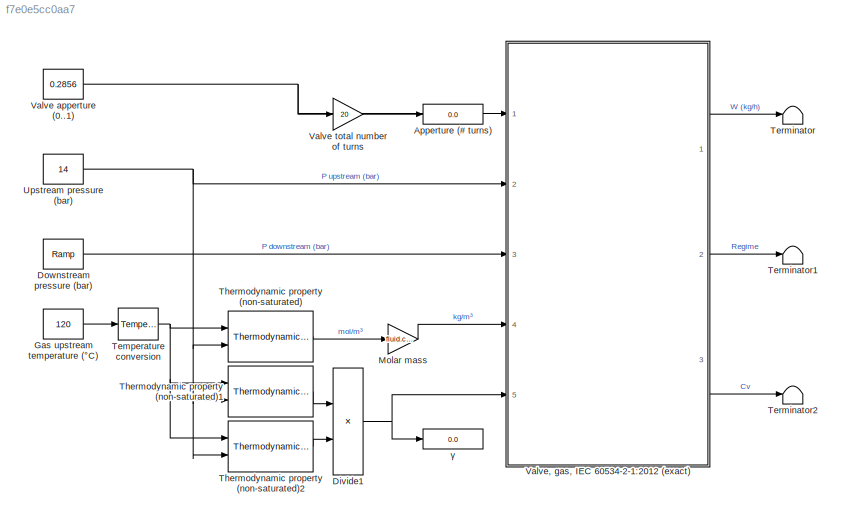
MODEL slx_f7e0e5cc0aa7
KIND model
CONFIG AbsTol = auto
CONFIG EnableMultiTasking = off
CONFIG FixedStep = auto
CONFIG MaxStep = auto
CONFIG MinStep = auto
CONFIG RelTol = 1e-3
CONFIG SampleTimeConstraint = Unconstrained
CONFIG Solver = VariableStepAuto
CONFIG SolverName = VariableStepAuto
CONFIG StartTime = 0.0
CONFIG StopTime = 5
BLOCK [Display] Apperture (# turns)
  Decimation = 1
  Ports = [1]
BLOCK [Product] Divide1
  InputSameDT = off
  Inputs = */
  OutDataTypeStr = Inherit: Inherit via internal rule
  Ports = [2, 1]
  RndMeth = Floor
  SaturateOnIntegerOverflow = off
BLOCK [Reference] Downstream pressure (bar)   REF=simulink/Sources/Ramp
  Ports = [0, 1]
  SourceBlock = simulink/Sources/Ramp
  SourceProductBaseCode = SL
  SourceProductName = Simulink
  SourceType = Ramp
BLOCK [Constant] Gas upstream temperature (°C)
  Value = 120
BLOCK [Gain] Molar mass
  Gain = fluid.constants.Molar_mass
  OutDataTypeStr = Inherit: Inherit via internal rule
  ParamDataTypeStr = Inherit: Inherit via internal rule
  SaturateOnIntegerOverflow = off
BLOCK [Reference] Temperature conversion  REF=thermochemical/Conversions/Temperature  (lib defined in slx_f9e0643dc704)
conversion
  Ports = [1, 1]
  SourceBlock = thermochemical/Conversions/Temperature\nconversion
  SourceProductName = @ Thermochemical
  SourceType = convert_temperature
BLOCK [Terminator] Terminator
BLOCK [Terminator] Terminator1
BLOCK [Terminator] Terminator2
BLOCK [Reference] Thermodynamic property (non-saturated)  REF=thermochemical/Thermodynamic fluid properties/Thermodynamic   (lib defined in slx_f9e0643dc704)
property (non-saturated)
  Ports = [2, 1]
  SourceBlock = thermochemical/Thermodynamic fluid properties/Thermodynamic \nproperty (non-saturated)
  SourceProductName = @ Thermochemical
  SourceType = thermodynamic_properties_nonsaturated
BLOCK [Reference] Thermodynamic property (non-saturated)1  REF=thermochemical/Thermodynamic fluid properties/Thermodynamic   (lib defined in slx_f9e0643dc704)
property (non-saturated)
  Ports = [2, 1]
  SourceBlock = thermochemical/Thermodynamic fluid properties/Thermodynamic \nproperty (non-saturated)
  SourceProductName = @ Thermochemical
  SourceType = thermodynamic_properties_nonsaturated
BLOCK [Reference] Thermodynamic property (non-saturated)2  REF=thermochemical/Thermodynamic fluid properties/Thermodynamic   (lib defined in slx_f9e0643dc704)
property (non-saturated)
  Ports = [2, 1]
  SourceBlock = thermochemical/Thermodynamic fluid properties/Thermodynamic \nproperty (non-saturated)
  SourceProductName = @ Thermochemical
  SourceType = thermodynamic_properties_nonsaturated
BLOCK [Constant] Upstream pressure (bar)
  Value = 14
BLOCK [Constant] Valve apperture (0..1)
  Value = 0.2856
BLOCK [Gain] Valve total number of turns
  Gain = 20
  OutDataTypeStr = Inherit: Inherit via internal rule
  ParamDataTypeStr = Inherit: Inherit via internal rule
  SaturateOnIntegerOverflow = off
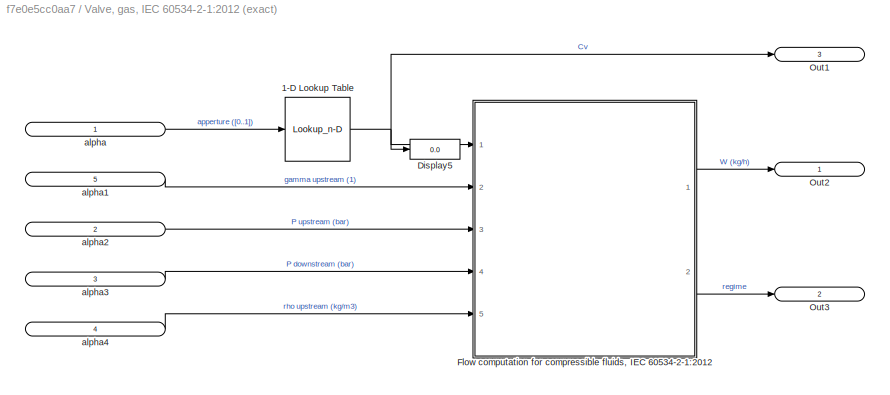
BLOCK [SubSystem] Valve, gas, IEC 60534-2-1:2012 (exact)
  AncestorBlock = thermochemical/Valves/Valve, gas, IEC 60534-2-1:2012 (exact)
  Ports = [5, 3]
  RequestExecContextInheritance = off
  Variant = off
BLOCK [Lookup_n-D] Valve, gas, IEC 60534-2-1:2012 (exact)/1-D Lookup Table
  BeginIndexSearchUsingPreviousIndexResult = on
  BreakpointsForDimension1 = apperture_dataPoints
  ExtrapMethod = Clip
  InternalRulePriority = Speed
  NumberOfTableDimensions = 1
  Ports = [1, 1]
  RndMeth = Simplest
  Table = Cv_dataPoints
BLOCK [Display] Valve, gas, IEC 60534-2-1:2012 (exact)/Display5
  Decimation = 1
  Ports = [1]
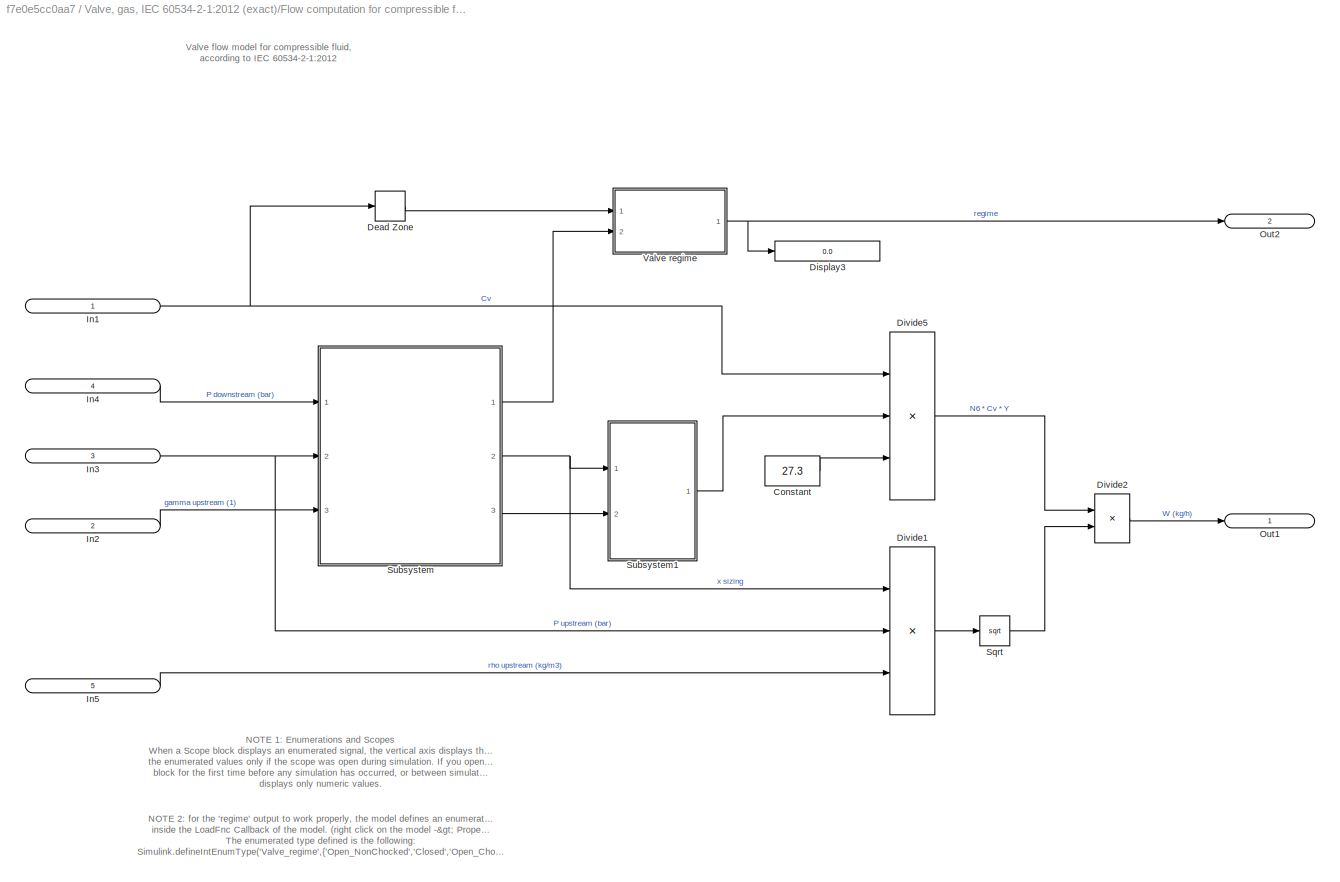
BLOCK [SubSystem] Valve, gas, IEC 60534-2-1:2012 (exact)/Flow computation for compressible fluids, IEC 60534-2-1:2012
  LoadFcn = % For the 'regime' output to work, the model defines an enumerated type:\nSimulink.defineIntEnumType('Valve_regime',{'Open_NonChocked','Closed','Open_Chocked'},[1 0 -1])
  Ports = [5, 2]
  RequestExecContextInheritance = off
  Variant = off
BLOCK [Constant] Valve, gas, IEC 60534-2-1:2012 (exact)/Flow computation for compressible fluids, IEC 60534-2-1:2012/Constant
  Value = 27.3
BLOCK [DeadZone] Valve, gas, IEC 60534-2-1:2012 (exact)/Flow computation for compressible fluids, IEC 60534-2-1:2012/Dead Zone
  LowerValue = -Inf
  UpperValue = 1e-7
BLOCK [Display] Valve, gas, IEC 60534-2-1:2012 (exact)/Flow computation for compressible fluids, IEC 60534-2-1:2012/Display3
  Decimation = 1
  Ports = [1]
BLOCK [Product] Valve, gas, IEC 60534-2-1:2012 (exact)/Flow computation for compressible fluids, IEC 60534-2-1:2012/Divide1
  InputSameDT = off
  Inputs = ***
  OutDataTypeStr = Inherit: Inherit via internal rule
  Ports = [3, 1]
  RndMeth = Floor
  SaturateOnIntegerOverflow = off
BLOCK [Product] Valve, gas, IEC 60534-2-1:2012 (exact)/Flow computation for compressible fluids, IEC 60534-2-1:2012/Divide2
  InputSameDT = off
  Inputs = **
  OutDataTypeStr = Inherit: Inherit via internal rule
  Ports = [2, 1]
  RndMeth = Floor
  SaturateOnIntegerOverflow = off
BLOCK [Product] Valve, gas, IEC 60534-2-1:2012 (exact)/Flow computation for compressible fluids, IEC 60534-2-1:2012/Divide5
  InputSameDT = off
  Inputs = ***
  OutDataTypeStr = Inherit: Inherit via internal rule
  Ports = [3, 1]
  RndMeth = Floor
  SaturateOnIntegerOverflow = off
BLOCK [Inport] Valve, gas, IEC 60534-2-1:2012 (exact)/Flow computation for compressible fluids, IEC 60534-2-1:2012/In1
  IconDisplay = Signal name
BLOCK [Inport] Valve, gas, IEC 60534-2-1:2012 (exact)/Flow computation for compressible fluids, IEC 60534-2-1:2012/In2
  IconDisplay = Signal name
  Port = 2
BLOCK [Inport] Valve, gas, IEC 60534-2-1:2012 (exact)/Flow computation for compressible fluids, IEC 60534-2-1:2012/In3
  IconDisplay = Signal name
  Port = 3
BLOCK [Inport] Valve, gas, IEC 60534-2-1:2012 (exact)/Flow computation for compressible fluids, IEC 60534-2-1:2012/In4
  IconDisplay = Signal name
  Port = 4
BLOCK [Inport] Valve, gas, IEC 60534-2-1:2012 (exact)/Flow computation for compressible fluids, IEC 60534-2-1:2012/In5
  IconDisplay = Signal name
  Port = 5
BLOCK [Outport] Valve, gas, IEC 60534-2-1:2012 (exact)/Flow computation for compressible fluids, IEC 60534-2-1:2012/Out1
  IconDisplay = Signal name
BLOCK [Outport] Valve, gas, IEC 60534-2-1:2012 (exact)/Flow computation for compressible fluids, IEC 60534-2-1:2012/Out2
  IconDisplay = Signal name
  Port = 2
BLOCK [Sqrt] Valve, gas, IEC 60534-2-1:2012 (exact)/Flow computation for compressible fluids, IEC 60534-2-1:2012/Sqrt
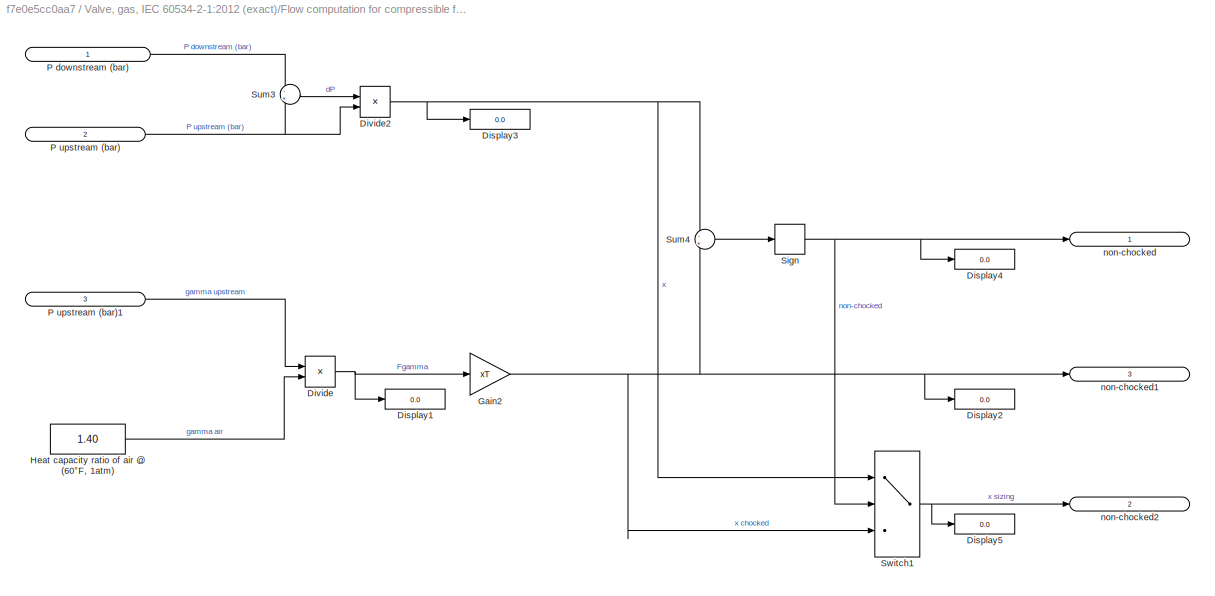
BLOCK [SubSystem] Valve, gas, IEC 60534-2-1:2012 (exact)/Flow computation for compressible fluids, IEC 60534-2-1:2012/Subsystem
  Ports = [3, 3]
  RequestExecContextInheritance = off
  Variant = off
BLOCK [Display] Valve, gas, IEC 60534-2-1:2012 (exact)/Flow computation for compressible fluids, IEC 60534-2-1:2012/Subsystem/Display1
  Decimation = 1
  Ports = [1]
BLOCK [Display] Valve, gas, IEC 60534-2-1:2012 (exact)/Flow computation for compressible fluids, IEC 60534-2-1:2012/Subsystem/Display2
  Decimation = 1
  Ports = [1]
BLOCK [Display] Valve, gas, IEC 60534-2-1:2012 (exact)/Flow computation for compressible fluids, IEC 60534-2-1:2012/Subsystem/Display3
  Decimation = 1
  Ports = [1]
BLOCK [Display] Valve, gas, IEC 60534-2-1:2012 (exact)/Flow computation for compressible fluids, IEC 60534-2-1:2012/Subsystem/Display4
  Decimation = 1
  Ports = [1]
BLOCK [Display] Valve, gas, IEC 60534-2-1:2012 (exact)/Flow computation for compressible fluids, IEC 60534-2-1:2012/Subsystem/Display5
  Decimation = 1
  Ports = [1]
BLOCK [Product] Valve, gas, IEC 60534-2-1:2012 (exact)/Flow computation for compressible fluids, IEC 60534-2-1:2012/Subsystem/Divide
  InputSameDT = off
  Inputs = */
  OutDataTypeStr = Inherit: Inherit via internal rule
  Ports = [2, 1]
  RndMeth = Floor
  SaturateOnIntegerOverflow = off
BLOCK [Product] Valve, gas, IEC 60534-2-1:2012 (exact)/Flow computation for compressible fluids, IEC 60534-2-1:2012/Subsystem/Divide2
  InputSameDT = off
  Inputs = */
  OutDataTypeStr = Inherit: Inherit via internal rule
  Ports = [2, 1]
  RndMeth = Floor
  SaturateOnIntegerOverflow = off
BLOCK [Gain] Valve, gas, IEC 60534-2-1:2012 (exact)/Flow computation for compressible fluids, IEC 60534-2-1:2012/Subsystem/Gain2
  Gain = xT
  OutDataTypeStr = Inherit: Inherit via internal rule
  ParamDataTypeStr = Inherit: Inherit via internal rule
  SaturateOnIntegerOverflow = off
BLOCK [Constant] Valve, gas, IEC 60534-2-1:2012 (exact)/Flow computation for compressible fluids, IEC 60534-2-1:2012/Subsystem/Heat capacity ratio of air @ (60°F, 1atm)
  Value = 1.40
BLOCK [Inport] Valve, gas, IEC 60534-2-1:2012 (exact)/Flow computation for compressible fluids, IEC 60534-2-1:2012/Subsystem/P downstream (bar)
  IconDisplay = Signal name
BLOCK [Inport] Valve, gas, IEC 60534-2-1:2012 (exact)/Flow computation for compressible fluids, IEC 60534-2-1:2012/Subsystem/P upstream (bar)
  IconDisplay = Signal name
  Port = 2
BLOCK [Inport] Valve, gas, IEC 60534-2-1:2012 (exact)/Flow computation for compressible fluids, IEC 60534-2-1:2012/Subsystem/P upstream (bar)1
  IconDisplay = Signal name
  Port = 3
BLOCK [Signum] Valve, gas, IEC 60534-2-1:2012 (exact)/Flow computation for compressible fluids, IEC 60534-2-1:2012/Subsystem/Sign
BLOCK [Sum] Valve, gas, IEC 60534-2-1:2012 (exact)/Flow computation for compressible fluids, IEC 60534-2-1:2012/Subsystem/Sum3
  IconShape = round
  InputSameDT = off
  Inputs = -+
  OutDataTypeStr = Inherit: Inherit via internal rule
  Ports = [2, 1]
  SaturateOnIntegerOverflow = off
BLOCK [Sum] Valve, gas, IEC 60534-2-1:2012 (exact)/Flow computation for compressible fluids, IEC 60534-2-1:2012/Subsystem/Sum4
  IconShape = round
  InputSameDT = off
  Inputs = -+
  OutDataTypeStr = Inherit: Inherit via internal rule
  Ports = [2, 1]
  SaturateOnIntegerOverflow = off
BLOCK [Switch] Valve, gas, IEC 60534-2-1:2012 (exact)/Flow computation for compressible fluids, IEC 60534-2-1:2012/Subsystem/Switch1
  Criteria = u2 > Threshold
  InputSameDT = off
  SaturateOnIntegerOverflow = off
BLOCK [Outport] Valve, gas, IEC 60534-2-1:2012 (exact)/Flow computation for compressible fluids, IEC 60534-2-1:2012/Subsystem/non-chocked
  IconDisplay = Signal name
BLOCK [Outport] Valve, gas, IEC 60534-2-1:2012 (exact)/Flow computation for compressible fluids, IEC 60534-2-1:2012/Subsystem/non-chocked1
  IconDisplay = Signal name
  Port = 3
BLOCK [Outport] Valve, gas, IEC 60534-2-1:2012 (exact)/Flow computation for compressible fluids, IEC 60534-2-1:2012/Subsystem/non-chocked2
  IconDisplay = Signal name
  Port = 2
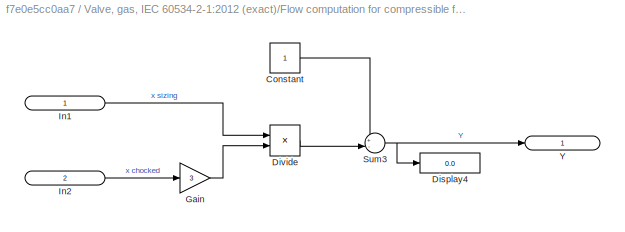
BLOCK [SubSystem] Valve, gas, IEC 60534-2-1:2012 (exact)/Flow computation for compressible fluids, IEC 60534-2-1:2012/Subsystem1
  Ports = [2, 1]
  RequestExecContextInheritance = off
  Variant = off
BLOCK [Constant] Valve, gas, IEC 60534-2-1:2012 (exact)/Flow computation for compressible fluids, IEC 60534-2-1:2012/Subsystem1/Constant
BLOCK [Display] Valve, gas, IEC 60534-2-1:2012 (exact)/Flow computation for compressible fluids, IEC 60534-2-1:2012/Subsystem1/Display4
  Decimation = 1
  Ports = [1]
BLOCK [Product] Valve, gas, IEC 60534-2-1:2012 (exact)/Flow computation for compressible fluids, IEC 60534-2-1:2012/Subsystem1/Divide
  InputSameDT = off
  Inputs = */
  OutDataTypeStr = Inherit: Inherit via internal rule
  Ports = [2, 1]
  RndMeth = Floor
  SaturateOnIntegerOverflow = off
BLOCK [Gain] Valve, gas, IEC 60534-2-1:2012 (exact)/Flow computation for compressible fluids, IEC 60534-2-1:2012/Subsystem1/Gain
  Gain = 3
  OutDataTypeStr = Inherit: Inherit via internal rule
  ParamDataTypeStr = Inherit: Inherit via internal rule
  SaturateOnIntegerOverflow = off
BLOCK [Inport] Valve, gas, IEC 60534-2-1:2012 (exact)/Flow computation for compressible fluids, IEC 60534-2-1:2012/Subsystem1/In1
  IconDisplay = Signal name
BLOCK [Inport] Valve, gas, IEC 60534-2-1:2012 (exact)/Flow computation for compressible fluids, IEC 60534-2-1:2012/Subsystem1/In2
  IconDisplay = Signal name
  Port = 2
BLOCK [Sum] Valve, gas, IEC 60534-2-1:2012 (exact)/Flow computation for compressible fluids, IEC 60534-2-1:2012/Subsystem1/Sum3
  IconShape = round
  InputSameDT = off
  Inputs = +-|
  OutDataTypeStr = Inherit: Inherit via internal rule
  Ports = [2, 1]
  SaturateOnIntegerOverflow = off
BLOCK [Outport] Valve, gas, IEC 60534-2-1:2012 (exact)/Flow computation for compressible fluids, IEC 60534-2-1:2012/Subsystem1/Y
  IconDisplay = Port number
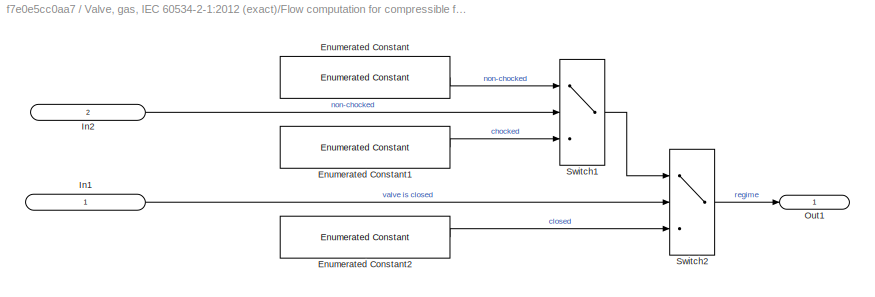
BLOCK [SubSystem] Valve, gas, IEC 60534-2-1:2012 (exact)/Flow computation for compressible fluids, IEC 60534-2-1:2012/Valve regime
  Ports = [2, 1]
  RequestExecContextInheritance = off
  Variant = off
BLOCK [Reference] Valve, gas, IEC 60534-2-1:2012 (exact)/Flow computation for compressible fluids, IEC 60534-2-1:2012/Valve regime/Enumerated Constant  REF=simulink/Sources/Enumerated
Constant
  Ports = [0, 1]
  SourceBlock = simulink/Sources/Enumerated\nConstant
  SourceProductBaseCode = SL
  SourceProductName = Simulink
  SourceType = Enumerated Constant
BLOCK [Reference] Valve, gas, IEC 60534-2-1:2012 (exact)/Flow computation for compressible fluids, IEC 60534-2-1:2012/Valve regime/Enumerated Constant1  REF=simulink/Sources/Enumerated
Constant
  Ports = [0, 1]
  SourceBlock = simulink/Sources/Enumerated\nConstant
  SourceProductBaseCode = SL
  SourceProductName = Simulink
  SourceType = Enumerated Constant
BLOCK [Reference] Valve, gas, IEC 60534-2-1:2012 (exact)/Flow computation for compressible fluids, IEC 60534-2-1:2012/Valve regime/Enumerated Constant2  REF=simulink/Sources/Enumerated
Constant
  Ports = [0, 1]
  SourceBlock = simulink/Sources/Enumerated\nConstant
  SourceProductBaseCode = SL
  SourceProductName = Simulink
  SourceType = Enumerated Constant
BLOCK [Inport] Valve, gas, IEC 60534-2-1:2012 (exact)/Flow computation for compressible fluids, IEC 60534-2-1:2012/Valve regime/In1
  IconDisplay = Signal name
BLOCK [Inport] Valve, gas, IEC 60534-2-1:2012 (exact)/Flow computation for compressible fluids, IEC 60534-2-1:2012/Valve regime/In2
  IconDisplay = Signal name
  Port = 2
BLOCK [Outport] Valve, gas, IEC 60534-2-1:2012 (exact)/Flow computation for compressible fluids, IEC 60534-2-1:2012/Valve regime/Out1
  IconDisplay = Signal name
BLOCK [Switch] Valve, gas, IEC 60534-2-1:2012 (exact)/Flow computation for compressible fluids, IEC 60534-2-1:2012/Valve regime/Switch1
  Criteria = u2 > Threshold
  InputSameDT = off
  SaturateOnIntegerOverflow = off
BLOCK [Switch] Valve, gas, IEC 60534-2-1:2012 (exact)/Flow computation for compressible fluids, IEC 60534-2-1:2012/Valve regime/Switch2
  Criteria = u2 > Threshold
  InputSameDT = off
  SaturateOnIntegerOverflow = off
  Threshold = 1e-5
BLOCK [Outport] Valve, gas, IEC 60534-2-1:2012 (exact)/Out1
  IconDisplay = Signal name
  Port = 3
BLOCK [Outport] Valve, gas, IEC 60534-2-1:2012 (exact)/Out2
  IconDisplay = Signal name
BLOCK [Outport] Valve, gas, IEC 60534-2-1:2012 (exact)/Out3
  IconDisplay = Signal name
  Port = 2
BLOCK [Inport] Valve, gas, IEC 60534-2-1:2012 (exact)/alpha
  IconDisplay = Signal name
BLOCK [Inport] Valve, gas, IEC 60534-2-1:2012 (exact)/alpha1
  IconDisplay = Signal name
  Port = 5
BLOCK [Inport] Valve, gas, IEC 60534-2-1:2012 (exact)/alpha2
  IconDisplay = Signal name
  Port = 2
BLOCK [Inport] Valve, gas, IEC 60534-2-1:2012 (exact)/alpha3
  IconDisplay = Signal name
  Port = 3
BLOCK [Inport] Valve, gas, IEC 60534-2-1:2012 (exact)/alpha4
  IconDisplay = Signal name
  Port = 4
BLOCK [Display] γ
  Decimation = 1
  Ports = [1]
ANNOTATION Valve, gas, IEC 60534-2-1:2012 (exact)/Flow computation for compressible fluids, IEC 60534-2-1:2012: Valve flow model for compressible fluid, according to IEC 60534-2-1:2012
ANNOTATION Valve, gas, IEC 60534-2-1:2012 (exact)/Flow computation for compressible fluids, IEC 60534-2-1:2012: NOTE 2: for the 'regime' output to work properly, the model defines an enumerated type. This is done inside the LoadFnc Callback of the model. (right click on the model -> Properties -> 'Callbacks' tab). The enumerated type defined is the following: Simulink.defineIntEnumType('Valve_regime',{'Open_NonChocked','Closed','Open_Chocked'},[1 0 -1])
ANNOTATION Valve, gas, IEC 60534-2-1:2012 (exact)/Flow computation for compressible fluids, IEC 60534-2-1:2012: NOTE 1: Enumerations and Scopes When a Scope block displays an enumerated signal, the vertical axis displays the names of the enumerated values only if the scope was open during simulation. If you open the Scope block for the first time before any simulation has occurred, or between simulations, the block displays only numeric values.
NET Divide1:1 -> Valve, gas, IEC 60534-2-1:2012 (exact):5, γ:1
LINE Downstream pressure (bar) :1 -> Valve, gas, IEC 60534-2-1:2012 (exact):3
LINE Gas upstream temperature (°C):1 -> Temperature conversion:1
LINE Molar mass:1 -> Valve, gas, IEC 60534-2-1:2012 (exact):4
NET Temperature conversion:1 -> Thermodynamic property (non-saturated)1:1, Thermodynamic property (non-saturated)2:1, Thermodynamic property (non-saturated):1
LINE Thermodynamic property (non-saturated)1:1 -> Divide1:1
LINE Thermodynamic property (non-saturated)2:1 -> Divide1:2
LINE Thermodynamic property (non-saturated):1 -> Molar mass:1
NET Upstream pressure (bar):1 -> Thermodynamic property (non-saturated)1:2, Thermodynamic property (non-saturated)2:2, Thermodynamic property (non-saturated):2, Valve, gas, IEC 60534-2-1:2012 (exact):2
NET Valve apperture (0..1):1 -> Valve total number of turns:1, Valve, gas, IEC 60534-2-1:2012 (exact):1
LINE Valve total number of turns:1 -> Apperture (# turns):1
LINE Valve, gas, IEC 60534-2-1:2012 (exact):1 -> Terminator:1
LINE Valve, gas, IEC 60534-2-1:2012 (exact):2 -> Terminator1:1
LINE Valve, gas, IEC 60534-2-1:2012 (exact):3 -> Terminator2:1
note: NET lines group one-source signal fan-out (src -> all destinations, sorted); 1:1 wires keep LINE
